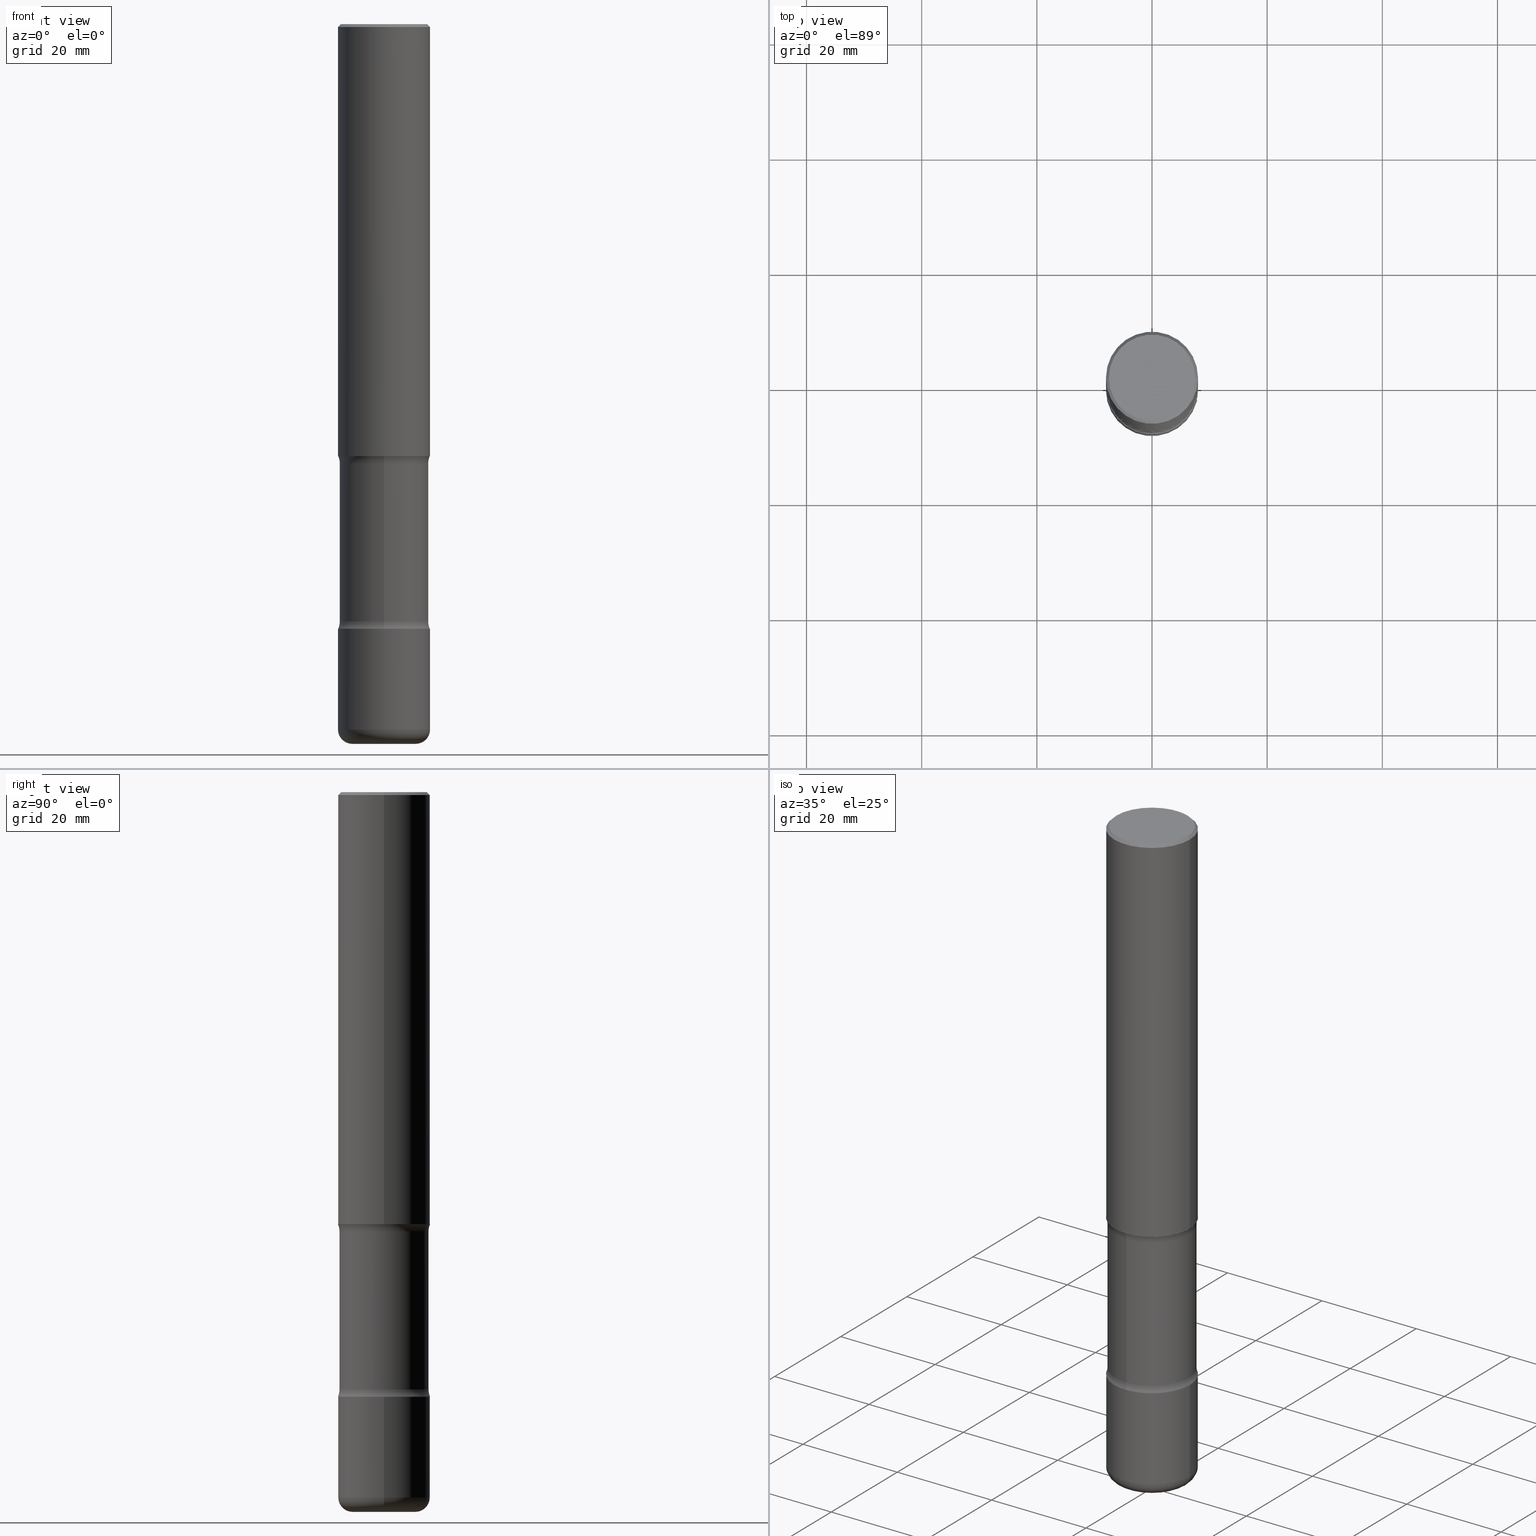
[diagram: canonical four-view strip — front | top / right | iso, engineering-drawing reading convention]
A machine part, canonical four-view strip (front | top / right | iso — engineering-drawing reading convention). The complete STEP part file that produces these views, byte-faithful:
ISO-10303-21;
HEADER;
FILE_DESCRIPTION (( 'STEP AP203' ),
    '1' );
FILE_NAME ('44840.STEP',
    '2024-03-02T03:47:58',
    ( '' ),
    ( '' ),
    'SwSTEP 2.0',
    'SolidWorks 2023',
    '' );
FILE_SCHEMA (( 'CONFIG_CONTROL_DESIGN' ));
ENDSEC;

DATA;
#1 = LINE ( 'NONE', #472, #282 ) ;
#2 = PERSON_AND_ORGANIZATION_ROLE ( 'classification_officer' ) ;
#3 = DIRECTION ( 'NONE',  ( -1.000000000000000000, 6.982962677686265922E-15, -4.876176775795935793E-29 ) ) ;
#4 = DATE_AND_TIME ( #344, #537 ) ;
#5 = ORIENTED_EDGE ( 'NONE', *, *, #43, .F. ) ;
#6 = AXIS2_PLACEMENT_3D ( 'NONE', #475, #163, #340 ) ;
#7 = CIRCLE ( 'NONE', #213, 0.3149500000000003408 ) ;
#8 = PLANE ( 'NONE',  #44 ) ;
#9 = ORGANIZATION ( 'UNSPECIFIED', 'UNSPECIFIED', '' ) ;
#10 = DATE_TIME_ROLE ( 'creation_date' ) ;
#11 = PLANE ( 'NONE',  #316 ) ;
#12 = EDGE_LOOP ( 'NONE', ( #364, #395 ) ) ;
#13 = EDGE_CURVE ( 'NONE', #256, #185, #189, .T. ) ;
#14 = DIRECTION ( 'NONE',  ( -2.445468806185136597E-29, 3.491481338843145583E-15, 1.000000000000000000 ) ) ;
#15 = ORIENTED_EDGE ( 'NONE', *, *, #248, .T. ) ;
#16 = CLOSED_SHELL ( 'NONE', ( #544, #518, #18, #318, #231, #182, #26, #273 ) ) ;
#17 = ORIENTED_EDGE ( 'NONE', *, *, #553, .T. ) ;
#18 = ADVANCED_FACE ( 'NONE', ( #464 ), #510, .F. ) ;
#19 = VERTEX_POINT ( 'NONE', #516 ) ;
#20 = ORIENTED_EDGE ( 'NONE', *, *, #515, .T. ) ;
#21 = DIRECTION ( 'NONE',  ( 1.000000000000000000, -6.860497997771530774E-15, 4.842927972151928864E-29 ) ) ;
#22 = ORIENTED_EDGE ( 'NONE', *, *, #548, .T. ) ;
#23 = AXIS2_PLACEMENT_3D ( 'NONE', #468, #126, #419 ) ;
#24 = ORIENTED_EDGE ( 'NONE', *, *, #131, .T. ) ;
#25 = DIRECTION ( 'NONE',  ( 1.000000000000000000, -6.982962677686251722E-15, 0.000000000000000000 ) ) ;
#26 = ADVANCED_FACE ( 'NONE', ( #78 ), #487, .F. ) ;
#27 = DIRECTION ( 'NONE',  ( 6.860497997771531562E-15, 1.000000000000000000, 0.000000000000000000 ) ) ;
#28 = ORIENTED_EDGE ( 'NONE', *, *, #553, .F. ) ;
#29 = CARTESIAN_POINT ( 'NONE',  ( 2.199284095337362446E-15, 0.3149499999999897382, -2.952800000000000757 ) ) ;
#30 = CARTESIAN_POINT ( 'NONE',  ( 4.890937612370289799E-31, -6.982962677686315028E-17, -0.02000000000000006981 ) ) ;
#31 = EDGE_LOOP ( 'NONE', ( #387, #218, #527, #232 ) ) ;
#32 = FACE_OUTER_BOUND ( 'NONE', #271, .T. ) ;
#33 = CIRCLE ( 'NONE', #351, 0.1250000000000000278 ) ;
#34 = AXIS2_PLACEMENT_3D ( 'NONE', #38, #153, #539 ) ;
#35 = FACE_OUTER_BOUND ( 'NONE', #285, .T. ) ;
#36 = CC_DESIGN_PERSON_AND_ORGANIZATION_ASSIGNMENT ( #398, #89, ( #172 ) ) ;
#37 = CARTESIAN_POINT ( 'NONE',  ( 0.000000000000000000, 0.000000000000000000, 0.000000000000000000 ) ) ;
#38 = CARTESIAN_POINT ( 'NONE',  ( 2.999531618200207292E-15, 0.4295499999999892737, -3.002718333305511855 ) ) ;
#39 = PERSON ( 'UNSPECIFIED', 'UNSPECIFIED', 'UNSPECIFIED', ('UNSPECIFIED'), ('UNSPECIFIED'), ('UNSPECIFIED') ) ;
#40 = DIRECTION ( 'NONE',  ( 6.982962677686265922E-15, 1.000000000000000000, -3.588045304435085321E-15 ) ) ;
#41 = CARTESIAN_POINT ( 'NONE',  ( 1.010932349788873450E-28, -1.443343470664368071E-14, -4.133899999999999686 ) ) ;
#42 = CARTESIAN_POINT ( 'NONE',  ( 1.179425150535029431E-28, -1.683906534910660571E-14, -4.822899999999999743 ) ) ;
#43 = EDGE_CURVE ( 'NONE', #100, #530, #160, .T. ) ;
#44 = AXIS2_PLACEMENT_3D ( 'NONE', #347, #528, #3 ) ;
#45 = AXIS2_PLACEMENT_3D ( 'NONE', #223, #14, #181 ) ;
#46 = DATE_AND_TIME ( #429, #334 ) ;
#47 = CARTESIAN_POINT ( 'NONE',  ( -0.2165500000000001590, -1.530038505481810704E-14, -4.822899999999999743 ) ) ;
#48 = DIRECTION ( 'NONE',  ( 2.438088387897960049E-29, -3.491481338843145188E-15, -1.000000000000000000 ) ) ;
#49 = DIRECTION ( 'NONE',  ( -2.445468806185136597E-29, 3.491481338843145583E-15, 1.000000000000000000 ) ) ;
#50 = EDGE_LOOP ( 'NONE', ( #278, #24, #96, #66 ) ) ;
#51 = VECTOR ( 'NONE', #478, 39.37007874015748143 ) ;
#52 = ADVANCED_FACE ( 'NONE', ( #431 ), #427, .T. ) ;
#53 = AXIS2_PLACEMENT_3D ( 'NONE', #294, #504, #77 ) ;
#54 = PLANE ( 'NONE',  #529 ) ;
#55 = CARTESIAN_POINT ( 'NONE',  ( 1.010932349788873450E-28, -1.443343470664368071E-14, -4.133899999999999686 ) ) ;
#56 = VERTEX_POINT ( 'NONE', #507 ) ;
#57 = ADVANCED_FACE ( 'NONE', ( #132 ), #470, .T. ) ;
#58 = TOROIDAL_SURFACE ( 'NONE', #53, 0.4295499999999999874, 0.1249999999999999029 ) ;
#59 = ORIENTED_EDGE ( 'NONE', *, *, #451, .F. ) ;
#60 = VECTOR ( 'NONE', #412, 39.37007874015748143 ) ;
#61 = PRODUCT ( '44840', '44840', '', ( #166 ) ) ;
#62 = ORIENTED_EDGE ( 'NONE', *, *, #454, .T. ) ;
#63 = CARTESIAN_POINT ( 'NONE',  ( 1.010932349788873450E-28, -1.443343470664368071E-14, -4.133899999999999686 ) ) ;
#64 = VERTEX_POINT ( 'NONE', #288 ) ;
#65 = ADVANCED_FACE ( 'NONE', ( #125 ), #201, .T. ) ;
#66 = ORIENTED_EDGE ( 'NONE', *, *, #97, .F. ) ;
#67 = AXIS2_PLACEMENT_3D ( 'NONE', #269, #219, #401 ) ;
#68 = CARTESIAN_POINT ( 'NONE',  ( -0.3149500000000001743, 2.237854346276436774E-15, -1.549218606675783237E-29 ) ) ;
#69 = AXIS2_PLACEMENT_3D ( 'NONE', #526, #358, #453 ) ;
#70 = APPROVAL_PERSON_ORGANIZATION ( #442, #139, #482 ) ;
#71 = CARTESIAN_POINT ( 'NONE',  ( -2.946926914942689361E-15, -0.4295500000000107010, -3.002718333305508747 ) ) ;
#72 =( LENGTH_UNIT ( ) NAMED_UNIT ( * ) SI_UNIT ( $, .METRE. ) );
#73 = CARTESIAN_POINT ( 'NONE',  ( 1.179425150535029431E-28, -1.683906534910660571E-14, -4.822899999999999743 ) ) ;
#74 = DIRECTION ( 'NONE',  ( 1.000000000000000000, -6.982962677686269866E-15, 4.883557194083114022E-29 ) ) ;
#75 = CARTESIAN_POINT ( 'NONE',  ( 1.179425150535029431E-28, -1.683906534910660571E-14, -4.822899999999999743 ) ) ;
#76 = EDGE_CURVE ( 'NONE', #105, #403, #1, .T. ) ;
#77 = DIRECTION ( 'NONE',  ( 6.982962677686265922E-15, 1.000000000000000000, -3.317627740461281923E-15 ) ) ;
#78 = FACE_OUTER_BOUND ( 'NONE', #500, .T. ) ;
#79 =( NAMED_UNIT ( * ) PLANE_ANGLE_UNIT ( ) SI_UNIT ( $, .RADIAN. ) );
#80 = AXIS2_PLACEMENT_3D ( 'NONE', #382, #559, #88 ) ;
#81 = AXIS2_PLACEMENT_3D ( 'NONE', #75, #426, #124 ) ;
#82 = DIRECTION ( 'NONE',  ( 1.000000000000000000, -6.982962677686267499E-15, 4.876053491004737710E-29 ) ) ;
#83 = LOCAL_TIME ( 22, 47, 58.00000000000000000, #265 ) ;
#84 = CARTESIAN_POINT ( 'NONE',  ( 9.981189619433368937E-29, -1.426782425931172754E-14, -4.083981666694489476 ) ) ;
#85 = APPLICATION_CONTEXT ( 'configuration controlled 3d designs of mechanical parts and assemblies' ) ;
#86 = DIRECTION ( 'NONE',  ( -1.000000000000000000, 6.982962677686265922E-15, -4.883557194083112340E-29 ) ) ;
#87 = EDGE_CURVE ( 'NONE', #534, #409, #136, .T. ) ;
#88 = DIRECTION ( 'NONE',  ( 1.000000000000000000, -6.982962677686267499E-15, 4.876053491004737710E-29 ) ) ;
#89 = PERSON_AND_ORGANIZATION_ROLE ( 'creator' ) ;
#90 = LINE ( 'NONE', #244, #227 ) ;
#91 = CIRCLE ( 'NONE', #23, 0.2165500000000000758 ) ;
#92 = CARTESIAN_POINT ( 'NONE',  ( 1.010932349788873450E-28, -1.443343470664368071E-14, -4.133899999999999686 ) ) ;
#93 = APPROVAL_STATUS ( 'not_yet_approved' ) ;
#94 = ORIENTED_EDGE ( 'NONE', *, *, #416, .F. ) ;
#95 = FACE_OUTER_BOUND ( 'NONE', #362, .T. ) ;
#96 = ORIENTED_EDGE ( 'NONE', *, *, #408, .T. ) ;
#97 = EDGE_CURVE ( 'NONE', #185, #403, #90, .T. ) ;
#98 = DIRECTION ( 'NONE',  ( 7.105427357601001859E-15, 1.000000000000000000, -3.491481338843145583E-15 ) ) ;
#99 = DATE_TIME_ROLE ( 'classification_date' ) ;
#100 = VERTEX_POINT ( 'NONE', #388 ) ;
#101 = CONICAL_SURFACE ( 'NONE', #494, 0.3149499999999998967, 0.7853981633974477239 ) ;
#102 =( GEOMETRIC_REPRESENTATION_CONTEXT ( 3 ) GLOBAL_UNCERTAINTY_ASSIGNED_CONTEXT ( ( #415 ) ) GLOBAL_UNIT_ASSIGNED_CONTEXT ( ( #506, #79, #556 ) ) REPRESENTATION_CONTEXT ( 'NONE', 'WORKASPACE' ) );
#103 = ORIENTED_EDGE ( 'NONE', *, *, #319, .T. ) ;
#104 = EDGE_CURVE ( 'NONE', #123, #409, #33, .T. ) ;
#105 = VERTEX_POINT ( 'NONE', #467 ) ;
#106 = CIRCLE ( 'NONE', #295, 0.3045499999999999874 ) ;
#107 = CIRCLE ( 'NONE', #69, 0.3149500000000001743 ) ;
#108 = VERTEX_POINT ( 'NONE', #129 ) ;
#109 = DIRECTION ( 'NONE',  ( 6.982962677686265922E-15, 1.000000000000000000, -3.317627740461282317E-15 ) ) ;
#110 = ORIENTED_EDGE ( 'NONE', *, *, #97, .T. ) ;
#111 = DIRECTION ( 'NONE',  ( 2.445468806185136597E-29, -3.491481338843145583E-15, -1.000000000000000000 ) ) ;
#112 = EDGE_CURVE ( 'NONE', #409, #534, #106, .T. ) ;
#113 = ORIENTED_EDGE ( 'NONE', *, *, #302, .F. ) ;
#114 = DIRECTION ( 'NONE',  ( 2.566870125073337216E-29, -3.317627740461282317E-15, -1.000000000000000000 ) ) ;
#115 = PRODUCT_DEFINITION_SHAPE ( 'NONE', 'NONE',  #172 ) ;
#116 = ORIENTED_EDGE ( 'NONE', *, *, #131, .F. ) ;
#117 = CLOSED_SHELL ( 'NONE', ( #65, #268, #428, #57, #52, #187 ) ) ;
#118 = CIRCLE ( 'NONE', #445, 0.09840000000000014013 ) ;
#119 = CARTESIAN_POINT ( 'NONE',  ( -2.160713844398043177E-15, -0.3149500000000144961, -4.133899999999998798 ) ) ;
#120 = CC_DESIGN_PERSON_AND_ORGANIZATION_ASSIGNMENT ( #439, #348, ( #61 ) ) ;
#121 = DIRECTION ( 'NONE',  ( 2.566870125073337216E-29, -3.317627740461282317E-15, -1.000000000000000000 ) ) ;
#122 = DIRECTION ( 'NONE',  ( 1.000000000000000000, -6.982962677686265922E-15, 0.000000000000000000 ) ) ;
#123 = VERTEX_POINT ( 'NONE', #119 ) ;
#124 = DIRECTION ( 'NONE',  ( 1.000000000000000000, -6.982962677686272233E-15, 0.000000000000000000 ) ) ;
#125 = FACE_OUTER_BOUND ( 'NONE', #323, .T. ) ;
#126 = DIRECTION ( 'NONE',  ( -2.445468806185136597E-29, 3.491481338843145583E-15, 1.000000000000000000 ) ) ;
#127 = AXIS2_PLACEMENT_3D ( 'NONE', #63, #177, #143 ) ;
#128 = APPROVAL_PERSON_ORGANIZATION ( #220, #293, #178 ) ;
#129 = CARTESIAN_POINT ( 'NONE',  ( -0.2165500000000000758, -1.512257891069522064E-14, -4.921299999999999564 ) ) ;
#130 = CALENDAR_DATE ( 2024, 1, 3 ) ;
#131 = EDGE_CURVE ( 'NONE', #256, #530, #207, .T. ) ;
#132 = FACE_OUTER_BOUND ( 'NONE', #413, .T. ) ;
#133 = APPROVAL ( #93, 'UNSPECIFIED' ) ;
#134 = FACE_OUTER_BOUND ( 'NONE', #31, .T. ) ;
#135 = APPROVAL_STATUS ( 'not_yet_approved' ) ;
#136 = CIRCLE ( 'NONE', #158, 0.3045499999999999874 ) ;
#137 = CONICAL_SURFACE ( 'NONE', #381, 0.3149499999999998967, 0.7853981633974477239 ) ;
#138 = CYLINDRICAL_SURFACE ( 'NONE', #422, 0.3045500000000000429 ) ;
#139 = APPROVAL ( #257, 'UNSPECIFIED' ) ;
#140 = DIRECTION ( 'NONE',  ( -2.445468806185136597E-29, 3.491481338843145583E-15, 1.000000000000000000 ) ) ;
#141 = PERSON_AND_ORGANIZATION ( #39, #9 ) ;
#142 = ORIENTED_EDGE ( 'NONE', *, *, #283, .F. ) ;
#143 = DIRECTION ( 'NONE',  ( 1.000000000000000000, -6.982962677686265922E-15, 0.000000000000000000 ) ) ;
#144 = ORIENTED_EDGE ( 'NONE', *, *, #76, .T. ) ;
#145 = CIRCLE ( 'NONE', #228, 0.1249999999999999029 ) ;
#146 = CARTESIAN_POINT ( 'NONE',  ( 0.3149500000000001743, -1.663271880198097216E-14, -4.133899999999999686 ) ) ;
#147 = ORIENTED_EDGE ( 'NONE', *, *, #509, .T. ) ;
#148 = ORIENTED_EDGE ( 'NONE', *, *, #357, .T. ) ;
#149 = AXIS2_PLACEMENT_3D ( 'NONE', #164, #195, #424 ) ;
#150 = ORIENTED_EDGE ( 'NONE', *, *, #243, .F. ) ;
#151 = EDGE_CURVE ( 'NONE', #194, #436, #366, .T. ) ;
#152 = ORIENTED_EDGE ( 'NONE', *, *, #112, .T. ) ;
#153 = DIRECTION ( 'NONE',  ( -1.000000000000000000, 6.982962677686265922E-15, -4.883557194083112340E-29 ) ) ;
#154 = EDGE_LOOP ( 'NONE', ( #62, #235, #447, #406 ) ) ;
#155 = DIRECTION ( 'NONE',  ( 6.982962677686265922E-15, 1.000000000000000000, -3.588045304435085321E-15 ) ) ;
#156 = FACE_OUTER_BOUND ( 'NONE', #372, .T. ) ;
#157 = ORIENTED_EDGE ( 'NONE', *, *, #454, .F. ) ;
#158 = AXIS2_PLACEMENT_3D ( 'NONE', #84, #249, #418 ) ;
#159 = DIRECTION ( 'NONE',  ( -2.445468806185136597E-29, 3.491481338843145583E-15, 1.000000000000000000 ) ) ;
#160 = LINE ( 'NONE', #252, #183 ) ;
#161 = CARTESIAN_POINT ( 'NONE',  ( 0.3149499999999998967, -2.230543471175006266E-15, -0.02000000000000006981 ) ) ;
#162 = DIRECTION ( 'NONE',  ( 2.566870125073337216E-29, -3.317627740461282317E-15, -1.000000000000000000 ) ) ;
#163 = DIRECTION ( 'NONE',  ( 2.566870125073337216E-29, -3.317627740461282317E-15, -1.000000000000000000 ) ) ;
#164 = CARTESIAN_POINT ( 'NONE',  ( 7.205727071619985758E-29, -1.068059502971681171E-14, -3.002718333305510523 ) ) ;
#165 = DIRECTION ( 'NONE',  ( 6.982962677686265922E-15, 1.000000000000000000, -3.317627740461281923E-15 ) ) ;
#166 = MECHANICAL_CONTEXT ( 'NONE', #85, 'mechanical' ) ;
#167 = EDGE_CURVE ( 'NONE', #100, #105, #315, .T. ) ;
#168 = AXIS2_PLACEMENT_3D ( 'NONE', #546, #159, #122 ) ;
#169 = DIRECTION ( 'NONE',  ( -1.000000000000000000, 6.982962677686265922E-15, -4.876176775795935793E-29 ) ) ;
#170 = ORIENTED_EDGE ( 'NONE', *, *, #379, .T. ) ;
#171 = DIRECTION ( 'NONE',  ( -2.445468806185136877E-29, 3.491481338843145188E-15, 1.000000000000000000 ) ) ;
#172 = PRODUCT_DEFINITION ( 'UNKNOWN', '', #471, #514 ) ;
#173 = CARTESIAN_POINT ( 'NONE',  ( 1.179425150535029431E-28, -1.683906534910660571E-14, -4.822899999999999743 ) ) ;
#174 = CALENDAR_DATE ( 2024, 1, 3 ) ;
#175 = ORIENTED_EDGE ( 'NONE', *, *, #379, .F. ) ;
#176 = CIRCLE ( 'NONE', #536, 0.2165500000000000758 ) ;
#177 = DIRECTION ( 'NONE',  ( -2.445468806185136597E-29, 3.491481338843145583E-15, 1.000000000000000000 ) ) ;
#178 = APPROVAL_ROLE ( '' ) ;
#179 = DIRECTION ( 'NONE',  ( -1.000000000000000000, 6.982962677686265922E-15, -4.876176775795935793E-29 ) ) ;
#180 = ORIENTED_EDGE ( 'NONE', *, *, #437, .F. ) ;
#181 = DIRECTION ( 'NONE',  ( 1.000000000000000000, -6.982962677686266711E-15, 4.876176775795936353E-29 ) ) ;
#182 = ADVANCED_FACE ( 'NONE', ( #277 ), #521, .F. ) ;
#183 = VECTOR ( 'NONE', #555, 39.37007874015748143 ) ;
#184 = CIRCLE ( 'NONE', #245, 0.3149499999999998967 ) ;
#185 = VERTEX_POINT ( 'NONE', #225 ) ;
#186 = ORIENTED_EDGE ( 'NONE', *, *, #76, .F. ) ;
#187 = ADVANCED_FACE ( 'NONE', ( #311 ), #54, .F. ) ;
#188 = ORIENTED_EDGE ( 'NONE', *, *, #357, .F. ) ;
#189 = CIRCLE ( 'NONE', #80, 0.2949499999999998234 ) ;
#190 = AXIS2_PLACEMENT_3D ( 'NONE', #331, #463, #551 ) ;
#191 = EDGE_LOOP ( 'NONE', ( #113, #320, #103, #541 ) ) ;
#192 = APPROVAL_PERSON_ORGANIZATION ( #477, #133, #435 ) ;
#193 = FACE_OUTER_BOUND ( 'NONE', #237, .T. ) ;
#194 = VERTEX_POINT ( 'NONE', #146 ) ;
#195 = DIRECTION ( 'NONE',  ( 2.566870125073337216E-29, -3.317627740461282317E-15, -1.000000000000000000 ) ) ;
#196 = ADVANCED_FACE ( 'NONE', ( #407 ), #8, .F. ) ;
#197 = CARTESIAN_POINT ( 'NONE',  ( -2.160713844398075521E-15, -0.3149500000000109434, -2.952799999999998537 ) ) ;
#198 = ORIENTED_EDGE ( 'NONE', *, *, #402, .F. ) ;
#199 = CARTESIAN_POINT ( 'NONE',  ( 7.077593193164616833E-29, -1.051498458238485696E-14, -2.952799999999999869 ) ) ;
#200 = DIRECTION ( 'NONE',  ( -2.445468806185136597E-29, 3.491481338843145583E-15, 1.000000000000000000 ) ) ;
#201 = CYLINDRICAL_SURFACE ( 'NONE', #221, 0.3149500000000001743 ) ;
#202 = AXIS2_PLACEMENT_3D ( 'NONE', #374, #287, #82 ) ;
#203 = CARTESIAN_POINT ( 'NONE',  ( 7.205727071619985758E-29, -1.068059502971681171E-14, -3.002718333305510523 ) ) ;
#204 = DIRECTION ( 'NONE',  ( -2.445468806185136597E-29, 3.491481338843145583E-15, 1.000000000000000000 ) ) ;
#205 = ORIENTED_EDGE ( 'NONE', *, *, #515, .F. ) ;
#206 = CARTESIAN_POINT ( 'NONE',  ( 0.2165500000000000758, -1.869478768070173264E-14, -4.921299999999999564 ) ) ;
#207 = LINE ( 'NONE', #300, #51 ) ;
#208 = DIRECTION ( 'NONE',  ( 1.000000000000000000, 0.000000000000000000, 0.000000000000000000 ) ) ;
#209 = DIRECTION ( 'NONE',  ( -0.7071067811865471286, 2.468850131082252722E-15, -0.7071067811865479058 ) ) ;
#210 = DATE_AND_TIME ( #174, #83 ) ;
#211 = CC_DESIGN_PERSON_AND_ORGANIZATION_ASSIGNMENT ( #304, #301, ( #471 ) ) ;
#212 = AXIS2_PLACEMENT_3D ( 'NONE', #92, #441, #259 ) ;
#213 = AXIS2_PLACEMENT_3D ( 'NONE', #298, #465, #508 ) ;
#214 = DIRECTION ( 'NONE',  ( -2.445468806185136597E-29, 3.491481338843145583E-15, 1.000000000000000000 ) ) ;
#215 = ADVANCED_FACE ( 'NONE', ( #95 ), #519, .T. ) ;
#216 = FACE_OUTER_BOUND ( 'NONE', #191, .T. ) ;
#217 = COORDINATED_UNIVERSAL_TIME_OFFSET ( 5, 0, .BEHIND. ) ;
#218 = ORIENTED_EDGE ( 'NONE', *, *, #258, .T. ) ;
#219 = DIRECTION ( 'NONE',  ( -2.445468806185136597E-29, 3.491481338843145583E-15, 1.000000000000000000 ) ) ;
#220 = PERSON_AND_ORGANIZATION ( #39, #9 ) ;
#221 = AXIS2_PLACEMENT_3D ( 'NONE', #240, #392, #342 ) ;
#222 = AXIS2_PLACEMENT_3D ( 'NONE', #376, #114, #384 ) ;
#223 = CARTESIAN_POINT ( 'NONE',  ( 0.000000000000000000, 0.000000000000000000, 0.000000000000000000 ) ) ;
#224 = EDGE_LOOP ( 'NONE', ( #205, #533 ) ) ;
#225 = CARTESIAN_POINT ( 'NONE',  ( -0.2949499999999998234, 2.094539655171994135E-15, 1.280553747028672311E-17 ) ) ;
#226 = EDGE_CURVE ( 'NONE', #461, #123, #107, .T. ) ;
#227 = VECTOR ( 'NONE', #209, 39.37007874015748143 ) ;
#228 = AXIS2_PLACEMENT_3D ( 'NONE', #71, #21, #27 ) ;
#229 = CC_DESIGN_APPROVAL ( #139, ( #172 ) ) ;
#230 = EDGE_LOOP ( 'NONE', ( #266, #148, #405, #272 ) ) ;
#231 = ADVANCED_FACE ( 'NONE', ( #317 ), #11, .F. ) ;
#232 = ORIENTED_EDGE ( 'NONE', *, *, #548, .F. ) ;
#233 = CARTESIAN_POINT ( 'NONE',  ( 0.3149500000000001743, -2.199284095337290660E-15, 1.535751875536930690E-29 ) ) ;
#234 = PRODUCT_RELATED_PRODUCT_CATEGORY ( 'detail', '', ( #61 ) ) ;
#235 = ORIENTED_EDGE ( 'NONE', *, *, #302, .T. ) ;
#236 = VECTOR ( 'NONE', #162, 39.37007874015748143 ) ;
#237 = EDGE_LOOP ( 'NONE', ( #188, #157, #261, #20 ) ) ;
#238 = FACE_OUTER_BOUND ( 'NONE', #154, .T. ) ;
#239 = ORIENTED_EDGE ( 'NONE', *, *, #243, .T. ) ;
#240 = CARTESIAN_POINT ( 'NONE',  ( 0.000000000000000000, 0.000000000000000000, 0.000000000000000000 ) ) ;
#241 = CARTESIAN_POINT ( 'NONE',  ( 2.126661283489425137E-15, 0.3045499999999894403, -3.002718333305511411 ) ) ;
#242 = CYLINDRICAL_SURFACE ( 'NONE', #190, 0.3149500000000000077 ) ;
#243 = EDGE_CURVE ( 'NONE', #436, #194, #547, .T. ) ;
#244 = CARTESIAN_POINT ( 'NONE',  ( -0.3149499999999998967, 2.129454468560425784E-15, -0.02000000000000006981 ) ) ;
#245 = AXIS2_PLACEMENT_3D ( 'NONE', #336, #204, #339 ) ;
#246 = AXIS2_PLACEMENT_3D ( 'NONE', #371, #501, #155 ) ;
#247 = DIRECTION ( 'NONE',  ( -2.445468806185136597E-29, 3.491481338843145583E-15, 1.000000000000000000 ) ) ;
#248 = EDGE_CURVE ( 'NONE', #56, #194, #354, .T. ) ;
#249 = DIRECTION ( 'NONE',  ( 2.566870125073337216E-29, -3.317627740461282317E-15, -1.000000000000000000 ) ) ;
#250 = DIRECTION ( 'NONE',  ( -6.982962677686265133E-15, -1.000000000000000000, 0.000000000000000000 ) ) ;
#251 = ADVANCED_BREP_SHAPE_REPRESENTATION ( '44840', ( #363, #369, #552, #370 ), #102 ) ;
#252 = CARTESIAN_POINT ( 'NONE',  ( 0.3149500000000000077, -2.199284095337289871E-15, 1.535751875536930130E-29 ) ) ;
#253 = SECURITY_CLASSIFICATION_LEVEL ( 'unclassified' ) ;
#254 = DIMENSIONAL_EXPONENTS ( 1.000000000000000000, 0.000000000000000000, 0.000000000000000000, 0.000000000000000000, 0.000000000000000000, 0.000000000000000000, 0.000000000000000000 ) ;
#255 = CARTESIAN_POINT ( 'NONE',  ( -0.3149500000000001743, -1.339839568159870722E-14, -4.133899999999999686 ) ) ;
#256 = VERTEX_POINT ( 'NONE', #486 ) ;
#257 = APPROVAL_STATUS ( 'not_yet_approved' ) ;
#258 = EDGE_CURVE ( 'NONE', #108, #64, #449, .T. ) ;
#259 = DIRECTION ( 'NONE',  ( -6.982962677686265922E-15, -1.000000000000000000, 3.317627740461282317E-15 ) ) ;
#260 = APPROVAL_DATE_TIME ( #305, #293 ) ;
#261 = ORIENTED_EDGE ( 'NONE', *, *, #499, .T. ) ;
#262 = CARTESIAN_POINT ( 'NONE',  ( 7.220980290903470182E-29, -1.030964609733603853E-14, -2.952799999999999869 ) ) ;
#263 = ORIENTED_EDGE ( 'NONE', *, *, #167, .F. ) ;
#264 = LINE ( 'NONE', #400, #236 ) ;
#265 = COORDINATED_UNIVERSAL_TIME_OFFSET ( 5, 0, .BEHIND. ) ;
#266 = ORIENTED_EDGE ( 'NONE', *, *, #532, .F. ) ;
#267 = CIRCLE ( 'NONE', #332, 0.3149499999999998967 ) ;
#268 = ADVANCED_FACE ( 'NONE', ( #134 ), #444, .T. ) ;
#269 = CARTESIAN_POINT ( 'NONE',  ( 7.220980290903470182E-29, -1.030964609733603853E-14, -2.952799999999999869 ) ) ;
#270 = ORIENTED_EDGE ( 'NONE', *, *, #104, .T. ) ;
#271 = EDGE_LOOP ( 'NONE', ( #59, #270, #152, #483 ) ) ;
#272 = ORIENTED_EDGE ( 'NONE', *, *, #499, .F. ) ;
#273 = ADVANCED_FACE ( 'NONE', ( #216 ), #138, .T. ) ;
#274 = CIRCLE ( 'NONE', #149, 0.3045500000000000984 ) ;
#275 = EDGE_LOOP ( 'NONE', ( #263, #94 ) ) ;
#276 = CC_DESIGN_PERSON_AND_ORGANIZATION_ASSIGNMENT ( #476, #355, ( #471 ) ) ;
#277 = FACE_OUTER_BOUND ( 'NONE', #12, .T. ) ;
#278 = ORIENTED_EDGE ( 'NONE', *, *, #13, .F. ) ;
#279 = EDGE_LOOP ( 'NONE', ( #549, #239 ) ) ;
#280 = CYLINDRICAL_SURFACE ( 'NONE', #246, 0.3045500000000000429 ) ;
#281 = DIRECTION ( 'NONE',  ( -1.000000000000000000, 6.982962677686265922E-15, 0.000000000000000000 ) ) ;
#282 = VECTOR ( 'NONE', #512, 39.37007874015748143 ) ;
#283 = EDGE_CURVE ( 'NONE', #496, #108, #176, .T. ) ;
#284 = AXIS2_PLACEMENT_3D ( 'NONE', #554, #86, #250 ) ;
#285 = EDGE_LOOP ( 'NONE', ( #116, #175, #110, #492 ) ) ;
#286 = DIRECTION ( 'NONE',  ( 2.566870125073337216E-29, -3.317627740461282317E-15, -1.000000000000000000 ) ) ;
#287 = DIRECTION ( 'NONE',  ( -2.445468806185136597E-29, 3.491481338843145583E-15, 1.000000000000000000 ) ) ;
#288 = CARTESIAN_POINT ( 'NONE',  ( -0.3149500000000002298, -1.460121100283016657E-14, -4.822899999999999743 ) ) ;
#289 = CC_DESIGN_DATE_AND_TIME_ASSIGNMENT ( #46, #99, ( #322 ) ) ;
#290 = DIRECTION ( 'NONE',  ( 2.566870125073337216E-29, -3.317627740461282317E-15, -1.000000000000000000 ) ) ;
#291 = FACE_OUTER_BOUND ( 'NONE', #457, .T. ) ;
#292 = DIRECTION ( 'NONE',  ( 6.860497997771529985E-15, 1.000000000000000000, 0.000000000000000000 ) ) ;
#293 = APPROVAL ( #135, 'UNSPECIFIED' ) ;
#294 = CARTESIAN_POINT ( 'NONE',  ( 7.199981073502327876E-29, -1.068882362606320242E-14, -3.002718333305510523 ) ) ;
#295 = AXIS2_PLACEMENT_3D ( 'NONE', #423, #425, #40 ) ;
#296 = DIRECTION ( 'NONE',  ( 2.566870125073337216E-29, -3.317627740461282317E-15, -1.000000000000000000 ) ) ;
#297 = VECTOR ( 'NONE', #171, 39.37007874015748143 ) ;
#298 = CARTESIAN_POINT ( 'NONE',  ( 7.077593193164616833E-29, -1.051498458238485696E-14, -2.952799999999999869 ) ) ;
#299 = LOCAL_TIME ( 22, 47, 58.00000000000000000, #433 ) ;
#300 = CARTESIAN_POINT ( 'NONE',  ( 0.3149499999999998967, -2.230543471175006266E-15, -0.02000000000000006981 ) ) ;
#301 = PERSON_AND_ORGANIZATION_ROLE ( 'creator' ) ;
#302 = EDGE_CURVE ( 'NONE', #19, #409, #264, .T. ) ;
#303 = DIRECTION ( 'NONE',  ( -2.445468806185136597E-29, 3.491481338843145583E-15, 1.000000000000000000 ) ) ;
#304 = PERSON_AND_ORGANIZATION ( #39, #9 ) ;
#305 = DATE_AND_TIME ( #524, #450 ) ;
#306 = CLOSED_SHELL ( 'NONE', ( #215, #328, #337, #196, #462, #396 ) ) ;
#307 = AXIS2_PLACEMENT_3D ( 'NONE', #173, #313, #349 ) ;
#308 = CC_DESIGN_APPROVAL ( #293, ( #471 ) ) ;
#309 = CARTESIAN_POINT ( 'NONE',  ( 1.213047703437148110E-28, -1.704573478948289233E-14, -4.921299999999999564 ) ) ;
#310 = COORDINATED_UNIVERSAL_TIME_OFFSET ( 5, 0, .BEHIND. ) ;
#311 = FACE_OUTER_BOUND ( 'NONE', #279, .T. ) ;
#312 = CARTESIAN_POINT ( 'NONE',  ( 0.000000000000000000, 0.000000000000000000, 0.000000000000000000 ) ) ;
#313 = DIRECTION ( 'NONE',  ( -2.445468806185136597E-29, 3.491481338843145583E-15, 1.000000000000000000 ) ) ;
#314 = EDGE_LOOP ( 'NONE', ( #170, #455 ) ) ;
#315 = CIRCLE ( 'NONE', #67, 0.3149500000000001743 ) ;
#316 = AXIS2_PLACEMENT_3D ( 'NONE', #262, #490, #109 ) ;
#317 = FACE_OUTER_BOUND ( 'NONE', #224, .T. ) ;
#318 = ADVANCED_FACE ( 'NONE', ( #193 ), #58, .F. ) ;
#319 = EDGE_CURVE ( 'NONE', #531, #534, #327, .T. ) ;
#320 = ORIENTED_EDGE ( 'NONE', *, *, #532, .T. ) ;
#321 = CIRCLE ( 'NONE', #81, 0.3149500000000001743 ) ;
#322 = SECURITY_CLASSIFICATION ( '', '', #253 ) ;
#323 = EDGE_LOOP ( 'NONE', ( #147, #17, #375, #440 ) ) ;
#324 = DIRECTION ( 'NONE',  ( 1.000000000000000000, -6.982962677686265922E-15, 0.000000000000000000 ) ) ;
#325 = EDGE_LOOP ( 'NONE', ( #28, #525, #15, #150 ) ) ;
#326 = DIRECTION ( 'NONE',  ( 6.982962677686264344E-15, 1.000000000000000000, -3.469564049740291192E-15 ) ) ;
#327 = LINE ( 'NONE', #469, #60 ) ;
#328 = ADVANCED_FACE ( 'NONE', ( #540 ), #101, .T. ) ;
#329 = ORIENTED_EDGE ( 'NONE', *, *, #167, .T. ) ;
#330 = DIRECTION ( 'NONE',  ( 1.000000000000000000, -6.982962677686265922E-15, 4.876176775795935793E-29 ) ) ;
#331 = CARTESIAN_POINT ( 'NONE',  ( 0.000000000000000000, 0.000000000000000000, 0.000000000000000000 ) ) ;
#332 = AXIS2_PLACEMENT_3D ( 'NONE', #30, #200, #324 ) ;
#333 = DIRECTION ( 'NONE',  ( 1.000000000000000000, -6.860497997771530774E-15, 4.842927972151928864E-29 ) ) ;
#334 = LOCAL_TIME ( 22, 47, 58.00000000000000000, #480 ) ;
#335 = LENGTH_MEASURE_WITH_UNIT ( LENGTH_MEASURE( 0.02539999999999999897 ), #72 );
#336 = CARTESIAN_POINT ( 'NONE',  ( 4.890937612370289799E-31, -6.982962677686315028E-17, -0.02000000000000006981 ) ) ;
#337 = ADVANCED_FACE ( 'NONE', ( #35 ), #137, .T. ) ;
#338 = DIRECTION ( 'NONE',  ( 6.982962677686265922E-15, 1.000000000000000000, -3.588045304435084532E-15 ) ) ;
#339 = DIRECTION ( 'NONE',  ( 1.000000000000000000, -6.982962677686265922E-15, 0.000000000000000000 ) ) ;
#340 = DIRECTION ( 'NONE',  ( 6.982962677686265922E-15, 1.000000000000000000, -3.317627740461282317E-15 ) ) ;
#341 = DIRECTION ( 'NONE',  ( -2.438088387897960049E-29, 3.491481338843145188E-15, 1.000000000000000000 ) ) ;
#342 = DIRECTION ( 'NONE',  ( 1.000000000000000000, -6.982962677686265922E-15, 4.876176775795935232E-29 ) ) ;
#343 = TOROIDAL_SURFACE ( 'NONE', #222, 0.4295500000000000429, 0.1250000000000000278 ) ;
#344 = CALENDAR_DATE ( 2024, 1, 3 ) ;
#345 = VECTOR ( 'NONE', #542, 39.37007874015748143 ) ;
#346 = CARTESIAN_POINT ( 'NONE',  ( 7.199981073502327876E-29, -1.068882362606320242E-14, -3.002718333305510523 ) ) ;
#347 = CARTESIAN_POINT ( 'NONE',  ( 2.059624841783562880E-15, 0.2949499999999998234, -1.023409652156634547E-15 ) ) ;
#348 = PERSON_AND_ORGANIZATION_ROLE ( 'design_owner' ) ;
#349 = DIRECTION ( 'NONE',  ( 1.000000000000000000, -6.982962677686269866E-15, 4.883557194083114022E-29 ) ) ;
#350 = APPROVAL_DATE_TIME ( #210, #133 ) ;
#351 = AXIS2_PLACEMENT_3D ( 'NONE', #505, #333, #292 ) ;
#352 = ORIENTED_EDGE ( 'NONE', *, *, #408, .F. ) ;
#353 = CIRCLE ( 'NONE', #168, 0.3149500000000001743 ) ;
#354 = LINE ( 'NONE', #233, #297 ) ;
#355 = PERSON_AND_ORGANIZATION_ROLE ( 'design_supplier' ) ;
#356 = ORIENTED_EDGE ( 'NONE', *, *, #43, .T. ) ;
#357 = EDGE_CURVE ( 'NONE', #19, #359, #145, .T. ) ;
#358 = DIRECTION ( 'NONE',  ( 2.566870125073337216E-29, -3.317627740461282317E-15, -1.000000000000000000 ) ) ;
#359 = VERTEX_POINT ( 'NONE', #197 ) ;
#360 = AXIS2_PLACEMENT_3D ( 'NONE', #37, #214, #385 ) ;
#361 = AXIS2_PLACEMENT_3D ( 'NONE', #203, #286, #338 ) ;
#362 = EDGE_LOOP ( 'NONE', ( #329, #144, #352, #5 ) ) ;
#363 = MANIFOLD_SOLID_BREP ( 'Body-Move/Copy2[1]', #117 ) ;
#364 = ORIENTED_EDGE ( 'NONE', *, *, #226, .T. ) ;
#365 = ORIENTED_EDGE ( 'NONE', *, *, #104, .F. ) ;
#366 = CIRCLE ( 'NONE', #557, 0.3149500000000001743 ) ;
#367 = CARTESIAN_POINT ( 'NONE',  ( 4.890937612370289799E-31, -6.982962677686315028E-17, -0.02000000000000006981 ) ) ;
#368 = AXIS2_PLACEMENT_3D ( 'NONE', #47, #98, #393 ) ;
#369 = MANIFOLD_SOLID_BREP ( 'Body-Move/Copy2[2]', #306 ) ;
#370 = AXIS2_PLACEMENT_3D ( 'NONE', #312, #394, #208 ) ;
#371 = CARTESIAN_POINT ( 'NONE',  ( 1.213047703437148110E-28, -1.704573478948289233E-14, -4.921299999999999564 ) ) ;
#372 = EDGE_LOOP ( 'NONE', ( #186, #491, #356, #452 ) ) ;
#373 = CARTESIAN_POINT ( 'NONE',  ( 2.199284095337391240E-15, 0.3149499999999856859, -4.133900000000000574 ) ) ;
#374 = CARTESIAN_POINT ( 'NONE',  ( -3.131554243005663153E-46, 4.471029511141347348E-32, 1.280553747030124924E-17 ) ) ;
#375 = ORIENTED_EDGE ( 'NONE', *, *, #151, .F. ) ;
#376 = CARTESIAN_POINT ( 'NONE',  ( 9.987249770933358034E-29, -1.425914577744133888E-14, -4.083981666694489476 ) ) ;
#377 = CARTESIAN_POINT ( 'NONE',  ( -2.125039254809631347E-15, -0.3045500000000142538, -4.083981666694488588 ) ) ;
#378 = AXIS2_PLACEMENT_3D ( 'NONE', #42, #303, #74 ) ;
#379 = EDGE_CURVE ( 'NONE', #185, #256, #380, .T. ) ;
#380 = CIRCLE ( 'NONE', #202, 0.2949499999999998234 ) ;
#381 = AXIS2_PLACEMENT_3D ( 'NONE', #367, #459, #543 ) ;
#382 = CARTESIAN_POINT ( 'NONE',  ( -3.131554243005663153E-46, 4.471029511141347348E-32, 1.280553747030124924E-17 ) ) ;
#383 = CC_DESIGN_SECURITY_CLASSIFICATION ( #322, ( #471 ) ) ;
#384 = DIRECTION ( 'NONE',  ( 6.982962677686265922E-15, 1.000000000000000000, -3.317627740461282317E-15 ) ) ;
#385 = DIRECTION ( 'NONE',  ( 1.000000000000000000, -6.982962677686265922E-15, 4.876176775795935232E-29 ) ) ;
#386 = DIRECTION ( 'NONE',  ( 6.982962677686265922E-15, 1.000000000000000000, -3.469564049740289220E-15 ) ) ;
#387 = ORIENTED_EDGE ( 'NONE', *, *, #283, .T. ) ;
#388 = CARTESIAN_POINT ( 'NONE',  ( 0.3149500000000001743, -1.250893019267332998E-14, -2.952799999999999869 ) ) ;
#389 = CIRCLE ( 'NONE', #34, 0.1249999999999999029 ) ;
#390 = SHAPE_DEFINITION_REPRESENTATION ( #115, #251 ) ;
#391 = EDGE_CURVE ( 'NONE', #403, #530, #184, .T. ) ;
#392 = DIRECTION ( 'NONE',  ( -2.445468806185136597E-29, 3.491481338843145583E-15, 1.000000000000000000 ) ) ;
#393 = DIRECTION ( 'NONE',  ( -1.000000000000000000, 7.105427357601008170E-15, 0.000000000000000000 ) ) ;
#394 = DIRECTION ( 'NONE',  ( 0.000000000000000000, 0.000000000000000000, 1.000000000000000000 ) ) ;
#395 = ORIENTED_EDGE ( 'NONE', *, *, #451, .T. ) ;
#396 = ADVANCED_FACE ( 'NONE', ( #156 ), #242, .T. ) ;
#397 = DIRECTION ( 'NONE',  ( 2.438088387897960049E-29, -3.491481338843145188E-15, -1.000000000000000000 ) ) ;
#398 = PERSON_AND_ORGANIZATION ( #39, #9 ) ;
#399 = AXIS2_PLACEMENT_3D ( 'NONE', #199, #121, #386 ) ;
#400 = CARTESIAN_POINT ( 'NONE',  ( -2.089364665221198612E-15, -0.3045500000000170848, -4.921299999999998676 ) ) ;
#401 = DIRECTION ( 'NONE',  ( 1.000000000000000000, -6.982962677686265922E-15, 0.000000000000000000 ) ) ;
#402 = EDGE_CURVE ( 'NONE', #64, #56, #520, .T. ) ;
#403 = VERTEX_POINT ( 'NONE', #417 ) ;
#404 = CIRCLE ( 'NONE', #432, 0.3149500000000001743 ) ;
#405 = ORIENTED_EDGE ( 'NONE', *, *, #489, .T. ) ;
#406 = ORIENTED_EDGE ( 'NONE', *, *, #319, .F. ) ;
#407 = FACE_OUTER_BOUND ( 'NONE', #314, .T. ) ;
#408 = EDGE_CURVE ( 'NONE', #530, #403, #267, .T. ) ;
#409 = VERTEX_POINT ( 'NONE', #377 ) ;
#410 = ORIENTED_EDGE ( 'NONE', *, *, #87, .T. ) ;
#411 = CARTESIAN_POINT ( 'NONE',  ( 0.2165500000000001590, -1.835122591695956496E-14, -4.822899999999999743 ) ) ;
#412 = DIRECTION ( 'NONE',  ( 2.566870125073337216E-29, -3.317627740461282317E-15, -1.000000000000000000 ) ) ;
#413 = EDGE_LOOP ( 'NONE', ( #545, #448, #22, #198 ) ) ;
#414 = LINE ( 'NONE', #68, #345 ) ;
#415 = UNCERTAINTY_MEASURE_WITH_UNIT (LENGTH_MEASURE( 1.000000000000000082E-05 ), #506, 'distance_accuracy_value', 'NONE');
#416 = EDGE_CURVE ( 'NONE', #105, #100, #353, .T. ) ;
#417 = CARTESIAN_POINT ( 'NONE',  ( -0.3149499999999998967, 2.129454468560425784E-15, -0.02000000000000006981 ) ) ;
#418 = DIRECTION ( 'NONE',  ( 6.982962677686265922E-15, 1.000000000000000000, -3.588045304435085321E-15 ) ) ;
#419 = DIRECTION ( 'NONE',  ( 1.000000000000000000, -6.982962677686271444E-15, 0.000000000000000000 ) ) ;
#420 = DIRECTION ( 'NONE',  ( 1.000000000000000000, -6.982962677686272233E-15, 0.000000000000000000 ) ) ;
#421 = CC_DESIGN_PERSON_AND_ORGANIZATION_ASSIGNMENT ( #141, #2, ( #322 ) ) ;
#422 = AXIS2_PLACEMENT_3D ( 'NONE', #309, #481, #523 ) ;
#423 = CARTESIAN_POINT ( 'NONE',  ( 9.981189619433368937E-29, -1.426782425931172754E-14, -4.083981666694489476 ) ) ;
#424 = DIRECTION ( 'NONE',  ( 6.982962677686265922E-15, 1.000000000000000000, -3.588045304435084532E-15 ) ) ;
#425 = DIRECTION ( 'NONE',  ( 2.566870125073337216E-29, -3.317627740461282317E-15, -1.000000000000000000 ) ) ;
#426 = DIRECTION ( 'NONE',  ( -2.445468806185136597E-29, 3.491481338843145583E-15, 1.000000000000000000 ) ) ;
#427 = CYLINDRICAL_SURFACE ( 'NONE', #360, 0.3149500000000001743 ) ;
#428 = ADVANCED_FACE ( 'NONE', ( #291 ), #466, .T. ) ;
#429 = CALENDAR_DATE ( 2024, 1, 3 ) ;
#430 = CARTESIAN_POINT ( 'NONE',  ( 1.203488563587891146E-28, -1.718262711284877024E-14, -4.921299999999999564 ) ) ;
#431 = FACE_OUTER_BOUND ( 'NONE', #325, .T. ) ;
#432 = AXIS2_PLACEMENT_3D ( 'NONE', #41, #290, #326 ) ;
#433 = COORDINATED_UNIVERSAL_TIME_OFFSET ( 5, 0, .BEHIND. ) ;
#434 = CARTESIAN_POINT ( 'NONE',  ( 1.010932349788873450E-28, -1.443343470664368071E-14, -4.133899999999999686 ) ) ;
#435 = APPROVAL_ROLE ( '' ) ;
#436 = VERTEX_POINT ( 'NONE', #255 ) ;
#437 = EDGE_CURVE ( 'NONE', #108, #496, #91, .T. ) ;
#438 = CARTESIAN_POINT ( 'NONE',  ( 1.203488563587891146E-28, -1.718262711284877024E-14, -4.921299999999999564 ) ) ;
#439 = PERSON_AND_ORGANIZATION ( #39, #9 ) ;
#440 = ORIENTED_EDGE ( 'NONE', *, *, #248, .F. ) ;
#441 = DIRECTION ( 'NONE',  ( -2.566870125073337216E-29, 3.317627740461282317E-15, 1.000000000000000000 ) ) ;
#442 = PERSON_AND_ORGANIZATION ( #39, #9 ) ;
#443 = ORIENTED_EDGE ( 'NONE', *, *, #226, .F. ) ;
#444 = TOROIDAL_SURFACE ( 'NONE', #307, 0.2165500000000001590, 0.09840000000000012625 ) ;
#445 = AXIS2_PLACEMENT_3D ( 'NONE', #411, #550, #25 ) ;
#446 = DIRECTION ( 'NONE',  ( 1.000000000000000000, -6.982962677686265922E-15, 0.000000000000000000 ) ) ;
#447 = ORIENTED_EDGE ( 'NONE', *, *, #87, .F. ) ;
#448 = ORIENTED_EDGE ( 'NONE', *, *, #437, .T. ) ;
#449 = CIRCLE ( 'NONE', #368, 0.09840000000000014013 ) ;
#450 = LOCAL_TIME ( 22, 47, 58.00000000000000000, #310 ) ;
#451 = EDGE_CURVE ( 'NONE', #123, #461, #404, .T. ) ;
#452 = ORIENTED_EDGE ( 'NONE', *, *, #391, .F. ) ;
#453 = DIRECTION ( 'NONE',  ( 6.982962677686264344E-15, 1.000000000000000000, -3.469564049740291192E-15 ) ) ;
#454 = EDGE_CURVE ( 'NONE', #531, #19, #274, .T. ) ;
#455 = ORIENTED_EDGE ( 'NONE', *, *, #13, .T. ) ;
#456 = APPLICATION_CONTEXT ( 'configuration controlled 3d designs of mechanical parts and assemblies' ) ;
#457 = EDGE_LOOP ( 'NONE', ( #142, #180 ) ) ;
#458 = FACE_OUTER_BOUND ( 'NONE', #275, .T. ) ;
#459 = DIRECTION ( 'NONE',  ( 2.445468806185136597E-29, -3.491481338843145583E-15, -1.000000000000000000 ) ) ;
#460 = CIRCLE ( 'NONE', #284, 0.1250000000000000278 ) ;
#461 = VERTEX_POINT ( 'NONE', #373 ) ;
#462 = ADVANCED_FACE ( 'NONE', ( #458 ), #503, .F. ) ;
#463 = DIRECTION ( 'NONE',  ( -2.445468806185136597E-29, 3.491481338843145583E-15, 1.000000000000000000 ) ) ;
#464 = FACE_OUTER_BOUND ( 'NONE', #230, .T. ) ;
#465 = DIRECTION ( 'NONE',  ( 2.566870125073337216E-29, -3.317627740461282317E-15, -1.000000000000000000 ) ) ;
#466 = PLANE ( 'NONE',  #502 ) ;
#467 = CARTESIAN_POINT ( 'NONE',  ( -0.3149500000000001743, -2.951883515780012562E-15, -2.952799999999999869 ) ) ;
#468 = CARTESIAN_POINT ( 'NONE',  ( 1.203488563587891146E-28, -1.718262711284877024E-14, -4.921299999999999564 ) ) ;
#469 = CARTESIAN_POINT ( 'NONE',  ( 2.126661283489474046E-15, 0.3045499999999830010, -4.921300000000000452 ) ) ;
#470 = TOROIDAL_SURFACE ( 'NONE', #378, 0.2165500000000001590, 0.09840000000000012625 ) ;
#471 = PRODUCT_DEFINITION_FORMATION_WITH_SPECIFIED_SOURCE ( 'ANY', '', #61, .NOT_KNOWN. ) ;
#472 = CARTESIAN_POINT ( 'NONE',  ( -0.3149500000000000077, 2.237854346276435590E-15, -1.549218606675782676E-29 ) ) ;
#473 = CARTESIAN_POINT ( 'NONE',  ( 2.126661283489451958E-15, 0.3045499999999856655, -4.083981666694491253 ) ) ;
#474 = EDGE_CURVE ( 'NONE', #461, #534, #460, .T. ) ;
#475 = CARTESIAN_POINT ( 'NONE',  ( 9.987249770933358034E-29, -1.425914577744133888E-14, -4.083981666694489476 ) ) ;
#476 = PERSON_AND_ORGANIZATION ( #39, #9 ) ;
#477 = PERSON_AND_ORGANIZATION ( #39, #9 ) ;
#478 = DIRECTION ( 'NONE',  ( 0.7071067811865471286, -7.319954787623254468E-15, -0.7071067811865479058 ) ) ;
#479 = CIRCLE ( 'NONE', #399, 0.3149500000000003408 ) ;
#480 = COORDINATED_UNIVERSAL_TIME_OFFSET ( 5, 0, .BEHIND. ) ;
#481 = DIRECTION ( 'NONE',  ( 2.566870125073337216E-29, -3.317627740461282317E-15, -1.000000000000000000 ) ) ;
#482 = APPROVAL_ROLE ( '' ) ;
#483 = ORIENTED_EDGE ( 'NONE', *, *, #474, .F. ) ;
#484 = DIRECTION ( 'NONE',  ( 1.000000000000000000, -6.982962677686271444E-15, 0.000000000000000000 ) ) ;
#485 = APPLICATION_PROTOCOL_DEFINITION ( 'international standard', 'config_control_design', 1994, #85 ) ;
#486 = CARTESIAN_POINT ( 'NONE',  ( 0.2949499999999998234, -2.127023677808859286E-15, 1.280553747031588939E-17 ) ) ;
#487 = TOROIDAL_SURFACE ( 'NONE', #6, 0.4295500000000000429, 0.1250000000000000278 ) ;
#488 = CIRCLE ( 'NONE', #361, 0.3045500000000000984 ) ;
#489 = EDGE_CURVE ( 'NONE', #359, #538, #7, .T. ) ;
#490 = DIRECTION ( 'NONE',  ( 2.566870125073337216E-29, -3.317627740461282317E-15, -1.000000000000000000 ) ) ;
#491 = ORIENTED_EDGE ( 'NONE', *, *, #416, .T. ) ;
#492 = ORIENTED_EDGE ( 'NONE', *, *, #391, .T. ) ;
#493 = CC_DESIGN_DATE_AND_TIME_ASSIGNMENT ( #517, #10, ( #172 ) ) ;
#494 = AXIS2_PLACEMENT_3D ( 'NONE', #498, #111, #281 ) ;
#495 = ORIENTED_EDGE ( 'NONE', *, *, #474, .T. ) ;
#496 = VERTEX_POINT ( 'NONE', #206 ) ;
#497 = CARTESIAN_POINT ( 'NONE',  ( 7.220980290903470182E-29, -1.030964609733603853E-14, -2.952799999999999869 ) ) ;
#498 = CARTESIAN_POINT ( 'NONE',  ( 4.890937612370289799E-31, -6.982962677686315028E-17, -0.02000000000000006981 ) ) ;
#499 = EDGE_CURVE ( 'NONE', #531, #538, #389, .T. ) ;
#500 = EDGE_LOOP ( 'NONE', ( #365, #443, #495, #410 ) ) ;
#501 = DIRECTION ( 'NONE',  ( 2.566870125073337216E-29, -3.317627740461282317E-15, -1.000000000000000000 ) ) ;
#502 = AXIS2_PLACEMENT_3D ( 'NONE', #430, #48, #169 ) ;
#503 = PLANE ( 'NONE',  #558 ) ;
#504 = DIRECTION ( 'NONE',  ( 2.566870125073337216E-29, -3.317627740461282317E-15, -1.000000000000000000 ) ) ;
#505 = CARTESIAN_POINT ( 'NONE',  ( -2.946926914942661751E-15, -0.4295500000000143648, -4.083981666694487700 ) ) ;
#506 =( CONVERSION_BASED_UNIT ( 'INCH', #335 ) LENGTH_UNIT ( ) NAMED_UNIT ( #254 ) );
#507 = CARTESIAN_POINT ( 'NONE',  ( 0.3149500000000002298, -1.903834944444389400E-14, -4.822899999999999743 ) ) ;
#508 = DIRECTION ( 'NONE',  ( 6.982962677686265922E-15, 1.000000000000000000, -3.469564049740289220E-15 ) ) ;
#509 = EDGE_CURVE ( 'NONE', #56, #64, #321, .T. ) ;
#510 = TOROIDAL_SURFACE ( 'NONE', #535, 0.4295499999999999874, 0.1249999999999999029 ) ;
#511 = AXIS2_PLACEMENT_3D ( 'NONE', #73, #247, #420 ) ;
#512 = DIRECTION ( 'NONE',  ( -2.445468806185136877E-29, 3.491481338843145188E-15, 1.000000000000000000 ) ) ;
#513 = APPLICATION_PROTOCOL_DEFINITION ( 'international standard', 'config_control_design', 1994, #456 ) ;
#514 = DESIGN_CONTEXT ( 'detailed design', #456, 'design' ) ;
#515 = EDGE_CURVE ( 'NONE', #538, #359, #479, .T. ) ;
#516 = CARTESIAN_POINT ( 'NONE',  ( -2.125039254809661718E-15, -0.3045500000000108121, -3.002718333305509191 ) ) ;
#517 = DATE_AND_TIME ( #130, #299 ) ;
#518 = ADVANCED_FACE ( 'NONE', ( #32 ), #343, .F. ) ;
#519 = CYLINDRICAL_SURFACE ( 'NONE', #45, 0.3149500000000000077 ) ;
#520 = CIRCLE ( 'NONE', #511, 0.3149500000000001743 ) ;
#521 = PLANE ( 'NONE',  #212 ) ;
#522 = CC_DESIGN_APPROVAL ( #133, ( #322 ) ) ;
#523 = DIRECTION ( 'NONE',  ( 6.982962677686265922E-15, 1.000000000000000000, -3.588045304435085321E-15 ) ) ;
#524 = CALENDAR_DATE ( 2024, 1, 3 ) ;
#525 = ORIENTED_EDGE ( 'NONE', *, *, #402, .T. ) ;
#526 = CARTESIAN_POINT ( 'NONE',  ( 1.010932349788873450E-28, -1.443343470664368071E-14, -4.133899999999999686 ) ) ;
#527 = ORIENTED_EDGE ( 'NONE', *, *, #509, .F. ) ;
#528 = DIRECTION ( 'NONE',  ( 2.438088387897960049E-29, -3.491481338843145188E-15, -1.000000000000000000 ) ) ;
#529 = AXIS2_PLACEMENT_3D ( 'NONE', #434, #397, #179 ) ;
#530 = VERTEX_POINT ( 'NONE', #161 ) ;
#531 = VERTEX_POINT ( 'NONE', #241 ) ;
#532 = EDGE_CURVE ( 'NONE', #19, #531, #488, .T. ) ;
#533 = ORIENTED_EDGE ( 'NONE', *, *, #489, .F. ) ;
#534 = VERTEX_POINT ( 'NONE', #473 ) ;
#535 = AXIS2_PLACEMENT_3D ( 'NONE', #346, #296, #165 ) ;
#536 = AXIS2_PLACEMENT_3D ( 'NONE', #438, #140, #484 ) ;
#537 = LOCAL_TIME ( 22, 47, 58.00000000000000000, #217 ) ;
#538 = VERTEX_POINT ( 'NONE', #29 ) ;
#539 = DIRECTION ( 'NONE',  ( -6.982962677686264344E-15, -1.000000000000000000, 0.000000000000000000 ) ) ;
#540 = FACE_OUTER_BOUND ( 'NONE', #50, .T. ) ;
#541 = ORIENTED_EDGE ( 'NONE', *, *, #112, .F. ) ;
#542 = DIRECTION ( 'NONE',  ( -2.445468806185136877E-29, 3.491481338843145188E-15, 1.000000000000000000 ) ) ;
#543 = DIRECTION ( 'NONE',  ( -1.000000000000000000, 6.982962677686265922E-15, 0.000000000000000000 ) ) ;
#544 = ADVANCED_FACE ( 'NONE', ( #238 ), #280, .T. ) ;
#545 = ORIENTED_EDGE ( 'NONE', *, *, #258, .F. ) ;
#546 = CARTESIAN_POINT ( 'NONE',  ( 7.220980290903470182E-29, -1.030964609733603853E-14, -2.952799999999999869 ) ) ;
#547 = CIRCLE ( 'NONE', #127, 0.3149500000000001743 ) ;
#548 = EDGE_CURVE ( 'NONE', #496, #56, #118, .T. ) ;
#549 = ORIENTED_EDGE ( 'NONE', *, *, #151, .T. ) ;
#550 = DIRECTION ( 'NONE',  ( -6.982962677686266711E-15, -1.000000000000000000, 3.491481338843145583E-15 ) ) ;
#551 = DIRECTION ( 'NONE',  ( 1.000000000000000000, -6.982962677686266711E-15, 4.876176775795936353E-29 ) ) ;
#552 = MANIFOLD_SOLID_BREP ( 'Body-Move/Copy2[4]', #16 ) ;
#553 = EDGE_CURVE ( 'NONE', #64, #436, #414, .T. ) ;
#554 = CARTESIAN_POINT ( 'NONE',  ( 2.999531618200236086E-15, 0.4295499999999857765, -4.083981666694491253 ) ) ;
#555 = DIRECTION ( 'NONE',  ( -2.445468806185136877E-29, 3.491481338843145188E-15, 1.000000000000000000 ) ) ;
#556 =( NAMED_UNIT ( * ) SI_UNIT ( $, .STERADIAN. ) SOLID_ANGLE_UNIT ( ) );
#557 = AXIS2_PLACEMENT_3D ( 'NONE', #55, #49, #446 ) ;
#558 = AXIS2_PLACEMENT_3D ( 'NONE', #497, #341, #330 ) ;
#559 = DIRECTION ( 'NONE',  ( -2.445468806185136597E-29, 3.491481338843145583E-15, 1.000000000000000000 ) ) ;
#560 = APPROVAL_DATE_TIME ( #4, #139 ) ;
ENDSEC;
END-ISO-10303-21;
